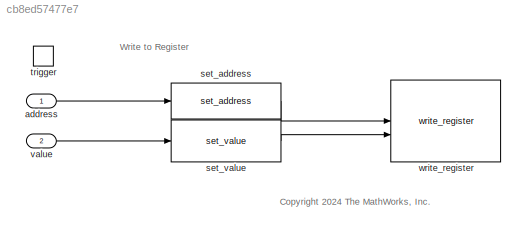
MODEL slx_cb8ed57477e7
KIND model
CONFIG AbsTol = auto
CONFIG EnableMultiTasking = off
CONFIG FixedStep = SAMPLING_TIME
CONFIG MaxStep = auto
CONFIG MinStep = auto
CONFIG RelTol = 1e-3
CONFIG SampleTimeConstraint = Unconstrained
CONFIG SolverName = FixedStepAuto
CONFIG StartTime = 0.0
CONFIG StopTime = Inf
BLOCK [Inport] address
  OutDataTypeStr = uint8
  PortDimensions = [1 6]
BLOCK [Reference] set_address  REF=Interface/set_address
  NameLocation = top
  SourceBlock = Interface/set_address
  SourceType = SubSystem
BLOCK [Reference] set_value  REF=Interface/set_value
  SourceBlock = Interface/set_value
  SourceType = SubSystem
BLOCK [TriggerPort] trigger
  PortDimensions = 1
  SampleTime = SAMPLING_TIME
  StatesWhenEnabling = held
  TriggerType = function-call
  VariantControl = Variant
BLOCK [Inport] value
  OutDataTypeStr = uint8
  Port = 2
  PortDimensions = [1 1]
BLOCK [Reference] write_register  REF=Interface/write_register
  SourceBlock = Interface/write_register
  SourceType = SubSystem
ANNOTATION (root): <copyright redacted>
ANNOTATION (root): Write to Register
LINE address:1 -> set_address:1
LINE set_address:1 -> write_register:1
LINE set_value:1 -> write_register:2
LINE value:1 -> set_value:1
